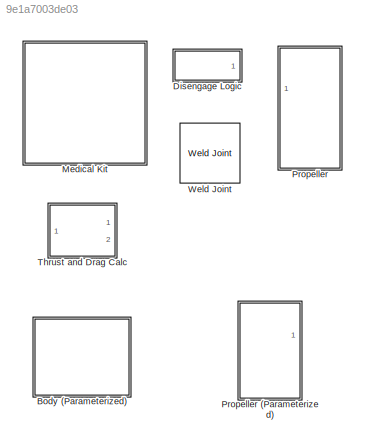
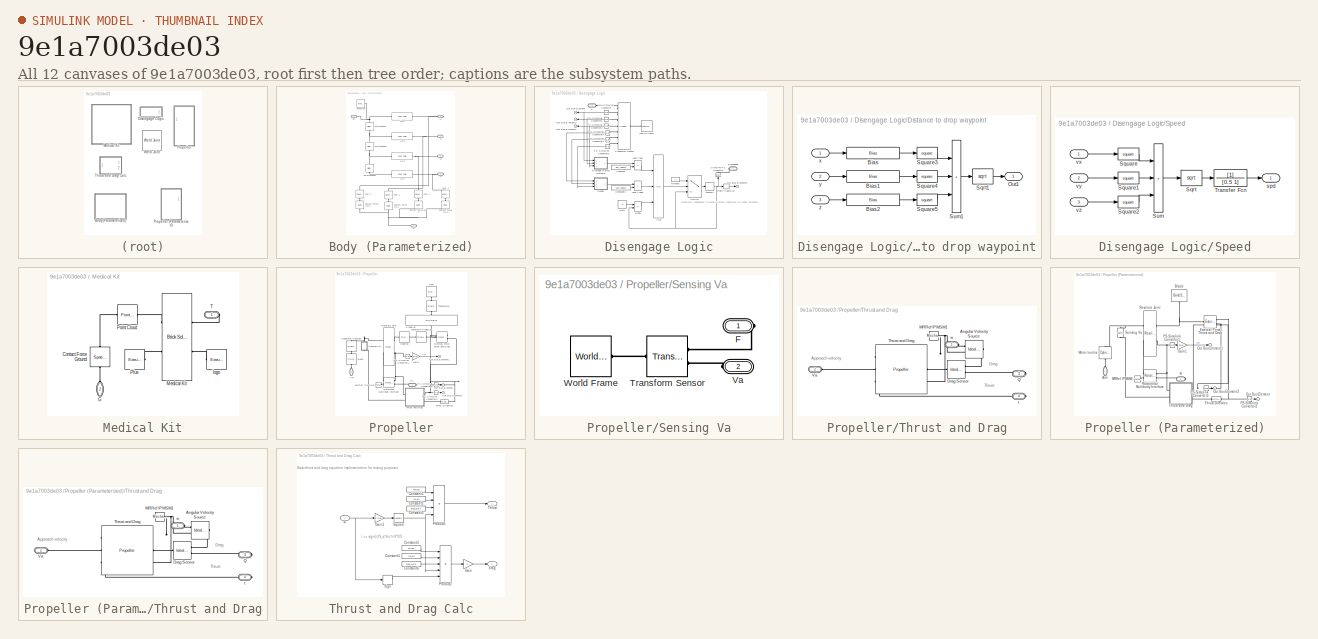
[diagram: thumbnail index - all 12 canvases of the model, root first then tree order]
MODEL slx_9e1a7003de03
KIND library
CONFIG AbsTol = auto
CONFIG EnableMultiTasking = off
CONFIG FixedStep = auto
CONFIG MaxStep = auto
CONFIG MinStep = auto
CONFIG RelTol = 1e-3
CONFIG SampleTimeConstraint = Unconstrained
CONFIG SolverName = VariableStepAuto
CONFIG StartTime = 0.0
CONFIG StopTime = 10.0
BLOCK [SubSystem] Body (Parameterized)
  PortSchema = {"entries":[{"content":{"sides":[{"content":{"connectorIds":["LConn1"]},"type":"ConnectorPlacement.EquallySpacedRectSide","uuid":"71964c0b-701d-403a-93bc-e0b6e5c18655"},{"content":{"connectorIds":["RConn1"],"side":"RIGHT"},"type":"ConnectorPlacement.EquallySpacedRectSide","uuid":"16cc4849-f0dc-4b80-8d16-c0672fc1cf46"},{"content":{"connectorIds":["LConn2"],"side":"TOP"},"type":"ConnectorPlacement.E...<+423ch>
  Ports = [0, 0, 0, 0, 0, 2, 4]
  RequestExecContextInheritance = off
BLOCK [PMIOPort] Body (Parameterized)/A1
  Port = 3
  Side = Right
BLOCK [PMIOPort] Body (Parameterized)/A2
  Port = 2
  Side = Left
BLOCK [PMIOPort] Body (Parameterized)/A3
  Side = Left
BLOCK [PMIOPort] Body (Parameterized)/A4
  Port = 5
  Side = Right
BLOCK [Reference] Body (Parameterized)/Arm1  REF=sm_lib/Body Elements/Brick Solid
  Ports = [0, 0, 0, 0, 0, 1, 1]
  SourceBlock = sm_lib/Body Elements/Brick Solid
  SourceProductBaseCode = MS
  SourceType = Brick Solid
BLOCK [Reference] Body (Parameterized)/Arm2  REF=sm_lib/Body Elements/Brick Solid
  Ports = [0, 0, 0, 0, 0, 1, 1]
  SourceBlock = sm_lib/Body Elements/Brick Solid
  SourceProductBaseCode = MS
  SourceType = Brick Solid
BLOCK [Reference] Body (Parameterized)/Arm3  REF=sm_lib/Body Elements/Brick Solid
  Ports = [0, 0, 0, 0, 0, 1, 1]
  SourceBlock = sm_lib/Body Elements/Brick Solid
  SourceProductBaseCode = MS
  SourceType = Brick Solid
BLOCK [Reference] Body (Parameterized)/Arm4  REF=sm_lib/Body Elements/Brick Solid
  Ports = [0, 0, 0, 0, 0, 1, 1]
  SourceBlock = sm_lib/Body Elements/Brick Solid
  SourceProductBaseCode = MS
  SourceType = Brick Solid
BLOCK [Reference] Body (Parameterized)/Contact Force Arm1  REF=sm_lib/Forces and
Torques/Spatial
Contact Force
  NameLocation = right
  Ports = [0, 0, 0, 0, 0, 1, 1]
  SourceBlock = sm_lib/Forces and\nTorques/Spatial\nContact Force
  SourceProductBaseCode = MS
  SourceType = Spatial\nContact Force
BLOCK [Reference] Body (Parameterized)/Contact Force Arm3  REF=sm_lib/Forces and
Torques/Spatial
Contact Force
  NameLocation = right
  Ports = [0, 0, 0, 0, 0, 1, 1]
  SourceBlock = sm_lib/Forces and\nTorques/Spatial\nContact Force
  SourceProductBaseCode = MS
  SourceType = Spatial\nContact Force
BLOCK [Reference] Body (Parameterized)/Contact Force Arm4  REF=sm_lib/Forces and
Torques/Spatial
Contact Force
  NameLocation = right
  Ports = [0, 0, 0, 0, 0, 1, 1]
  SourceBlock = sm_lib/Forces and\nTorques/Spatial\nContact Force
  SourceProductBaseCode = MS
  SourceType = Spatial\nContact Force
BLOCK [Reference] Body (Parameterized)/Contact Force Foot 2  REF=sm_lib/Forces and
Torques/Spatial
Contact Force
  NameLocation = right
  Ports = [0, 0, 0, 0, 0, 1, 1]
  SourceBlock = sm_lib/Forces and\nTorques/Spatial\nContact Force
  SourceProductBaseCode = MS
  SourceType = Spatial\nContact Force
BLOCK [PMIOPort] Body (Parameterized)/Ctr
  NameLocation = top
  Port = 4
  Side = Right
BLOCK [Reference] Body (Parameterized)/FixedMass  REF=sm_lib/Body Elements/Brick Solid
  Ports = [0, 0, 0, 0, 0, 0, 1]
  SourceBlock = sm_lib/Body Elements/Brick Solid
  SourceProductBaseCode = MS
  SourceType = Brick Solid
BLOCK [Reference] Body (Parameterized)/Foot 1  REF=sm_lib/Body Elements/Spherical Solid
  NameLocation = right
  Ports = [0, 0, 0, 0, 0, 1, 1]
  SourceBlock = sm_lib/Body Elements/Spherical Solid
  SourceProductBaseCode = MS
  SourceType = Spherical Solid
BLOCK [Reference] Body (Parameterized)/Foot 2  REF=sm_lib/Body Elements/Spherical Solid
  NameLocation = right
  Ports = [0, 0, 0, 0, 0, 1, 1]
  SourceBlock = sm_lib/Body Elements/Spherical Solid
  SourceProductBaseCode = MS
  SourceType = Spherical Solid
BLOCK [Reference] Body (Parameterized)/Foot 3  REF=sm_lib/Body Elements/Spherical Solid
  NameLocation = right
  Ports = [0, 0, 0, 0, 0, 1, 1]
  SourceBlock = sm_lib/Body Elements/Spherical Solid
  SourceProductBaseCode = MS
  SourceType = Spherical Solid
BLOCK [Reference] Body (Parameterized)/Foot 4  REF=sm_lib/Body Elements/Spherical Solid
  NameLocation = right
  Ports = [0, 0, 0, 0, 0, 1, 1]
  SourceBlock = sm_lib/Body Elements/Spherical Solid
  SourceProductBaseCode = MS
  SourceType = Spherical Solid
BLOCK [PMIOPort] Body (Parameterized)/G
  Port = 6
  Side = Right
BLOCK [Reference] Body (Parameterized)/Rotate90deg  REF=sm_lib/Frames and
Transforms/Rigid
Transform
  NameLocation = left
  Ports = [0, 0, 0, 0, 0, 1, 1]
  SourceBlock = sm_lib/Frames and\nTransforms/Rigid\nTransform
  SourceProductBaseCode = MS
  SourceType = Rigid\nTransform
BLOCK [Reference] Body (Parameterized)/Rotate90deg1  REF=sm_lib/Frames and
Transforms/Rigid
Transform
  NameLocation = left
  Ports = [0, 0, 0, 0, 0, 1, 1]
  SourceBlock = sm_lib/Frames and\nTransforms/Rigid\nTransform
  SourceProductBaseCode = MS
  SourceType = Rigid\nTransform
BLOCK [Reference] Body (Parameterized)/Rotate90deg2  REF=sm_lib/Frames and
Transforms/Rigid
Transform
  NameLocation = left
  Ports = [0, 0, 0, 0, 0, 1, 1]
  SourceBlock = sm_lib/Frames and\nTransforms/Rigid\nTransform
  SourceProductBaseCode = MS
  SourceType = Rigid\nTransform
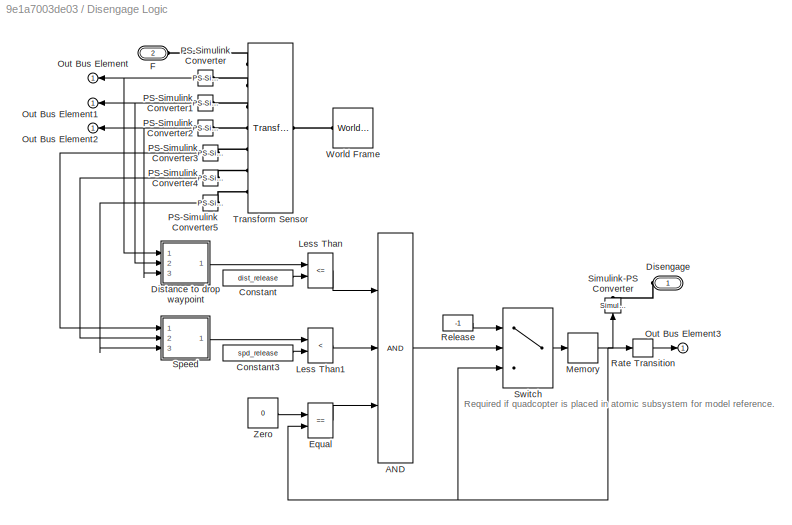
BLOCK [SubSystem] Disengage Logic
  Ports = [0, 1, 0, 0, 0, 2]
  RequestExecContextInheritance = off
BLOCK [Logic] Disengage Logic/AND
  AllPortsSameDT = off
  Inputs = 3
  OutDataTypeStr = boolean
  Ports = [3, 1]
BLOCK [Constant] Disengage Logic/Constant
  Value = dist_release
BLOCK [Constant] Disengage Logic/Constant3
  Value = spd_release
BLOCK [PMIOPort] Disengage Logic/Disengage
  Side = Left
BLOCK [SubSystem] Disengage Logic/Distance to drop waypoint
  Ports = [3, 1]
  RequestExecContextInheritance = off
BLOCK [Bias] Disengage Logic/Distance to drop waypoint/Bias
  Bias = -tgt_pos_x
  SaturateOnIntegerOverflow = off
BLOCK [Bias] Disengage Logic/Distance to drop waypoint/Bias1
  Bias = -tgt_pos_y
  SaturateOnIntegerOverflow = off
BLOCK [Bias] Disengage Logic/Distance to drop waypoint/Bias2
  Bias = -tgt_pos_z
  SaturateOnIntegerOverflow = off
BLOCK [Outport] Disengage Logic/Distance to drop waypoint/Out1
BLOCK [Sqrt] Disengage Logic/Distance to drop waypoint/Sqrt1
BLOCK [Math] Disengage Logic/Distance to drop waypoint/Square3
  Operator = square
  Ports = [1, 1]
BLOCK [Math] Disengage Logic/Distance to drop waypoint/Square4
  Operator = square
  Ports = [1, 1]
BLOCK [Math] Disengage Logic/Distance to drop waypoint/Square5
  Operator = square
  Ports = [1, 1]
BLOCK [Sum] Disengage Logic/Distance to drop waypoint/Sum1
  IconShape = rectangular
  Inputs = +++
  Ports = [3, 1]
BLOCK [Inport] Disengage Logic/Distance to drop waypoint/x
BLOCK [Inport] Disengage Logic/Distance to drop waypoint/y
  Port = 2
BLOCK [Inport] Disengage Logic/Distance to drop waypoint/z
  Port = 3
BLOCK [RelationalOperator] Disengage Logic/Equal
  InputSameDT = off
  Operator = ==
  OutDataTypeStr = boolean
  Ports = [2, 1]
  RndMeth = Simplest
BLOCK [PMIOPort] Disengage Logic/F
  Port = 2
  Side = Left
BLOCK [RelationalOperator] Disengage Logic/Less Than
  InputSameDT = off
  Operator = <=
  OutDataTypeStr = boolean
  Ports = [2, 1]
  RndMeth = Simplest
  ZeroCross = off
BLOCK [RelationalOperator] Disengage Logic/Less Than1
  InputSameDT = off
  Operator = <
  OutDataTypeStr = boolean
  Ports = [2, 1]
  RndMeth = Simplest
  ZeroCross = off
BLOCK [Memory] Disengage Logic/Memory
BLOCK [Outport] Disengage Logic/Out Bus Element
BLOCK [Outport] Disengage Logic/Out Bus Element1
BLOCK [Outport] Disengage Logic/Out Bus Element2
BLOCK [Outport] Disengage Logic/Out Bus Element3
BLOCK [Reference] Disengage Logic/PS-Simulink Converter  REF=nesl_utility/PS-Simulink
Converter
  Ports = [0, 1, 0, 0, 0, 1]
  SourceBlock = nesl_utility/PS-Simulink\nConverter
  SourceProductBaseCode = PW,SS
  SourceType = PS-Simulink\nConverter
BLOCK [Reference] Disengage Logic/PS-Simulink Converter1  REF=nesl_utility/PS-Simulink
Converter
  Ports = [0, 1, 0, 0, 0, 1]
  SourceBlock = nesl_utility/PS-Simulink\nConverter
  SourceProductBaseCode = PW,SS
  SourceType = PS-Simulink\nConverter
BLOCK [Reference] Disengage Logic/PS-Simulink Converter2  REF=nesl_utility/PS-Simulink
Converter
  Ports = [0, 1, 0, 0, 0, 1]
  SourceBlock = nesl_utility/PS-Simulink\nConverter
  SourceProductBaseCode = PW,SS
  SourceType = PS-Simulink\nConverter
BLOCK [Reference] Disengage Logic/PS-Simulink Converter3  REF=nesl_utility/PS-Simulink
Converter
  Ports = [0, 1, 0, 0, 0, 1]
  SourceBlock = nesl_utility/PS-Simulink\nConverter
  SourceProductBaseCode = PW,SS
  SourceType = PS-Simulink\nConverter
BLOCK [Reference] Disengage Logic/PS-Simulink Converter4  REF=nesl_utility/PS-Simulink
Converter
  Ports = [0, 1, 0, 0, 0, 1]
  SourceBlock = nesl_utility/PS-Simulink\nConverter
  SourceProductBaseCode = PW,SS
  SourceType = PS-Simulink\nConverter
BLOCK [Reference] Disengage Logic/PS-Simulink Converter5  REF=nesl_utility/PS-Simulink
Converter
  Ports = [0, 1, 0, 0, 0, 1]
  SourceBlock = nesl_utility/PS-Simulink\nConverter
  SourceProductBaseCode = PW,SS
  SourceType = PS-Simulink\nConverter
BLOCK [RateTransition] Disengage Logic/Rate Transition
BLOCK [Constant] Disengage Logic/Release
  NameLocation = top
  OutDataTypeStr = Inherit: Inherit via back propagation
  Value = -1
BLOCK [Reference] Disengage Logic/Simulink-PS Converter  REF=nesl_utility/Simulink-PS
Converter
  NameLocation = right
  Ports = [1, 0, 0, 0, 0, 0, 1]
  SourceBlock = nesl_utility/Simulink-PS\nConverter
  SourceProductBaseCode = PW,SS
  SourceType = Simulink-PS\nConverter
BLOCK [SubSystem] Disengage Logic/Speed
  Ports = [3, 1]
  RequestExecContextInheritance = off
BLOCK [Sqrt] Disengage Logic/Speed/Sqrt
BLOCK [Math] Disengage Logic/Speed/Square
  Operator = square
  Ports = [1, 1]
BLOCK [Math] Disengage Logic/Speed/Square1
  Operator = square
  Ports = [1, 1]
BLOCK [Math] Disengage Logic/Speed/Square2
  Operator = square
  Ports = [1, 1]
BLOCK [Sum] Disengage Logic/Speed/Sum
  IconShape = rectangular
  Inputs = +++
  Ports = [3, 1]
BLOCK [TransferFcn] Disengage Logic/Speed/Transfer Fcn
  Denominator = [0.5 1]
BLOCK [Outport] Disengage Logic/Speed/spd
BLOCK [Inport] Disengage Logic/Speed/vx
BLOCK [Inport] Disengage Logic/Speed/vy
  Port = 2
BLOCK [Inport] Disengage Logic/Speed/vz
  Port = 3
BLOCK [Switch] Disengage Logic/Switch
  Criteria = u2 > Threshold
  InputSameDT = off
  SaturateOnIntegerOverflow = off
BLOCK [Reference] Disengage Logic/Transform Sensor  REF=sm_lib/Frames and
Transforms/Transform
Sensor
  Ports = [0, 0, 0, 0, 0, 1, 7]
  SourceBlock = sm_lib/Frames and\nTransforms/Transform\nSensor
  SourceProductBaseCode = MS
  SourceType = Transform\nSensor
BLOCK [Reference] Disengage Logic/World Frame  REF=sm_lib/Frames and
Transforms/World Frame
  Ports = [0, 0, 0, 0, 0, 0, 1]
  SourceBlock = sm_lib/Frames and\nTransforms/World Frame
  SourceProductBaseCode = MS
  SourceType = World Frame
BLOCK [Constant] Disengage Logic/Zero
  OutDataTypeStr = Inherit: Inherit via back propagation
  Value = 0
BLOCK [SubSystem] Medical Kit
  Ports = [0, 0, 0, 0, 0, 1, 1]
  RequestExecContextInheritance = off
BLOCK [Reference] Medical Kit/Contact Force Ground  REF=sm_lib/Forces and
Torques/Spatial
Contact Force
  NameLocation = left
  Ports = [0, 0, 0, 0, 0, 1, 1]
  SourceBlock = sm_lib/Forces and\nTorques/Spatial\nContact Force
  SourceProductBaseCode = MS
  SourceType = Spatial\nContact Force
BLOCK [PMIOPort] Medical Kit/G
  NameLocation = left
  Port = 2
  Side = Left
BLOCK [Reference] Medical Kit/Medical Kit  REF=sm_lib/Body Elements/Brick Solid
  Ports = [0, 0, 0, 0, 0, 2, 2]
  SourceBlock = sm_lib/Body Elements/Brick Solid
  SourceProductBaseCode = MS
  SourceType = Brick Solid
BLOCK [Reference] Medical Kit/Plus  REF=sm_lib/Body Elements/Extruded Solid
  Ports = [0, 0, 0, 0, 0, 0, 1]
  SourceBlock = sm_lib/Body Elements/Extruded Solid
  SourceProductBaseCode = MS
  SourceType = Extruded Solid
BLOCK [Reference] Medical Kit/Point Cloud  REF=sm_lib/Curves and Surfaces/Point Cloud
  Ports = [0, 0, 0, 0, 0, 1, 1]
  SourceBlock = sm_lib/Curves and Surfaces/Point Cloud
  SourceProductBaseCode = MS
  SourceType = Point Cloud
BLOCK [PMIOPort] Medical Kit/T
  Side = Right
BLOCK [Reference] Medical Kit/logo  REF=sm_lib/Body Elements/Extruded Solid
  Ports = [0, 0, 0, 0, 0, 0, 1]
  SourceBlock = sm_lib/Body Elements/Extruded Solid
  SourceProductBaseCode = MS
  SourceType = Extruded Solid
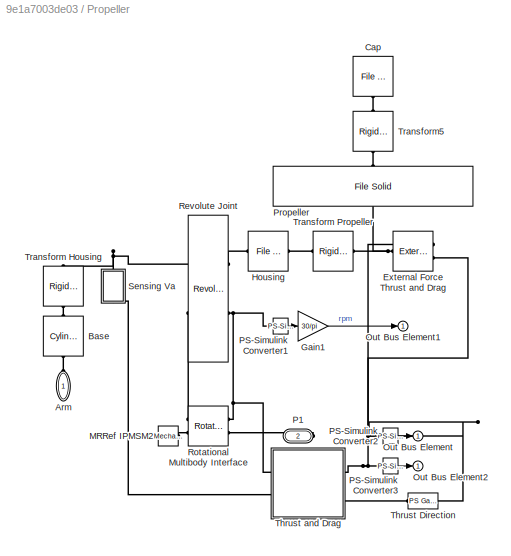
BLOCK [SubSystem] Propeller
  Ports = [0, 1, 0, 0, 0, 1, 1]
  RequestExecContextInheritance = off
BLOCK [SubSystem] Propeller (Parameterized)
  PortSchema = {"entries":[{"content":{"sides":[{"content":{"connectorIds":["LConn1"]},"type":"ConnectorPlacement.EquallySpacedRectSide","uuid":"bda53b0d-2d0a-42d0-8427-0e839c72d07d"},{"content":{"connectorIds":["RConn1","Out1"],"side":"RIGHT"},"type":"ConnectorPlacement.EquallySpacedRectSide","uuid":"59875194-16de-42fe-ad5a-9de406b1fa58"},{"content":{"connectorIds":[],"side":"TOP"},"type":"ConnectorPlacement.Eq...<+252ch>
  Ports = [0, 1, 0, 0, 0, 1, 1]
  RequestExecContextInheritance = off
BLOCK [PMIOPort] Propeller (Parameterized)/Arm
  NameLocation = left
  Side = Left
BLOCK [Reference] Propeller (Parameterized)/Blade  REF=sm_lib/Body Elements/Brick Solid
  NameLocation = left
  Ports = [0, 0, 0, 0, 0, 0, 1]
  SourceBlock = sm_lib/Body Elements/Brick Solid
  SourceProductBaseCode = MS
  SourceType = Brick Solid
BLOCK [Reference] Propeller (Parameterized)/External Force Thrust and Drag  REF=sm_lib/Forces and
Torques/External Force
and Torque
  Ports = [0, 0, 0, 0, 0, 2, 1]
  SourceBlock = sm_lib/Forces and\nTorques/External Force\nand Torque
  SourceProductBaseCode = MS
  SourceType = External Force\nand Torque
BLOCK [Gain] Propeller (Parameterized)/Gain1
  Gain = 30/pi
BLOCK [Reference] Propeller (Parameterized)/MRRef IPMSM2  REF=fl_lib/Mechanical/Rotational Elements/Mechanical
Rotational Reference
  Ports = [0, 0, 0, 0, 0, 1]
  SourceBlock = fl_lib/Mechanical/Rotational Elements/Mechanical\nRotational Reference
  SourceProductBaseCode = SS
  SourceType = Mechanical\nRotational Reference
BLOCK [Reference] Propeller (Parameterized)/Motor Inertia  REF=sm_lib/Body Elements/Cylindrical Solid
  NameLocation = left
  Ports = [0, 0, 0, 0, 0, 1, 1]
  SourceBlock = sm_lib/Body Elements/Cylindrical Solid
  SourceProductBaseCode = MS
  SourceType = Cylindrical Solid
BLOCK [Outport] Propeller (Parameterized)/Out Bus Element
BLOCK [Outport] Propeller (Parameterized)/Out Bus Element1
BLOCK [Outport] Propeller (Parameterized)/Out Bus Element2
BLOCK [Reference] Propeller (Parameterized)/PS-Simulink Converter1  REF=nesl_utility/PS-Simulink
Converter
  Ports = [0, 1, 0, 0, 0, 1]
  SourceBlock = nesl_utility/PS-Simulink\nConverter
  SourceProductBaseCode = PW,SS
  SourceType = PS-Simulink\nConverter
BLOCK [Reference] Propeller (Parameterized)/PS-Simulink Converter2  REF=nesl_utility/PS-Simulink
Converter
  Ports = [0, 1, 0, 0, 0, 1]
  SourceBlock = nesl_utility/PS-Simulink\nConverter
  SourceProductBaseCode = PW,SS
  SourceType = PS-Simulink\nConverter
BLOCK [Reference] Propeller (Parameterized)/PS-Simulink Converter3  REF=nesl_utility/PS-Simulink
Converter
  Ports = [0, 1, 0, 0, 0, 1]
  SourceBlock = nesl_utility/PS-Simulink\nConverter
  SourceProductBaseCode = PW,SS
  SourceType = PS-Simulink\nConverter
BLOCK [PMIOPort] Propeller (Parameterized)/R
  NameLocation = top
  Port = 2
  Side = Right
BLOCK [Reference] Propeller (Parameterized)/Revolute Joint  REF=sm_lib/Joints/Revolute Joint
  Ports = [0, 0, 0, 0, 0, 2, 2]
  SourceBlock = sm_lib/Joints/Revolute Joint
  SourceProductBaseCode = MS
  SourceType = Revolute Joint
BLOCK [Reference] Propeller (Parameterized)/Rotational Multibody Interface  REF=fl_lib/Mechanical/Multibody Interfaces/Rotational Multibody
Interface
  Ports = [0, 0, 0, 0, 0, 2, 2]
  SourceBlock = fl_lib/Mechanical/Multibody Interfaces/Rotational Multibody\nInterface
  SourceProductBaseCode = SS
  SourceType = Rotational Multibody\nInterface
BLOCK [Reference] Propeller (Parameterized)/Sensing Va  REF=$bdroot/Propeller/Sensing
Va
  NameLocation = right
  Ports = [0, 0, 0, 0, 0, 1, 1]
  SourceBlock = $bdroot/Propeller/Sensing\nVa
  SourceType = SubSystem
BLOCK [Reference] Propeller (Parameterized)/Thrust Direction  REF=fl_lib/Physical Signals/Functions/PS Gain
  Ports = [0, 0, 0, 0, 0, 1, 1]
  SourceBlock = fl_lib/Physical Signals/Functions/PS Gain
  SourceProductBaseCode = SS
  SourceType = PS Gain
BLOCK [SubSystem] Propeller (Parameterized)/Thrust and Drag
  Ports = [0, 0, 0, 0, 0, 2, 2]
  RequestExecContextInheritance = off
BLOCK [Reference] Propeller (Parameterized)/Thrust and Drag/Angular Velocity Source  REF=fl_lib/Mechanical/Mechanical Sources/Ideal Angular
Velocity Source
  NameLocation = top
  Ports = [0, 0, 0, 0, 0, 1, 2]
  SourceBlock = fl_lib/Mechanical/Mechanical Sources/Ideal Angular\nVelocity Source
  SourceProductBaseCode = SS
  SourceType = Ideal Angular\nVelocity Source
BLOCK [Reference] Propeller (Parameterized)/Thrust and Drag/Drag Sensor  REF=fl_lib/Mechanical/Mechanical Sensors/Ideal Torque Sensor
  Ports = [0, 0, 0, 0, 0, 1, 2]
  SourceBlock = fl_lib/Mechanical/Mechanical Sensors/Ideal Torque Sensor
  SourceProductBaseCode = SS
  SourceType = Ideal Torque Sensor
BLOCK [Reference] Propeller (Parameterized)/Thrust and Drag/MRRef IPMSM1  REF=fl_lib/Mechanical/Rotational Elements/Mechanical
Rotational Reference
  Ports = [0, 0, 0, 0, 0, 1]
  SourceBlock = fl_lib/Mechanical/Rotational Elements/Mechanical\nRotational Reference
  SourceProductBaseCode = SS
  SourceType = Mechanical\nRotational Reference
BLOCK [PMIOPort] Propeller (Parameterized)/Thrust and Drag/Q
  Port = 3
  Side = Right
BLOCK [Reference] Propeller (Parameterized)/Thrust and Drag/Thrust and Drag  REF=sdl_lib/Engines & Motors/Propeller
  Ports = [0, 0, 0, 0, 0, 3, 1]
  SourceBlock = sdl_lib/Engines & Motors/Propeller
  SourceProductBaseCode = LD
  SourceType = Propeller
BLOCK [PMIOPort] Propeller (Parameterized)/Thrust and Drag/Va
  Port = 2
  Side = Left
BLOCK [PMIOPort] Propeller (Parameterized)/Thrust and Drag/t
  Port = 4
  Side = Right
BLOCK [PMIOPort] Propeller (Parameterized)/Thrust and Drag/w
  NameLocation = top
  Side = Left
BLOCK [PMIOPort] Propeller/Arm
  NameLocation = left
  Side = Left
BLOCK [Reference] Propeller/Base  REF=sm_lib/Body Elements/Cylindrical Solid
  NameLocation = left
  Ports = [0, 0, 0, 0, 0, 1, 1]
  SourceBlock = sm_lib/Body Elements/Cylindrical Solid
  SourceProductBaseCode = MS
  SourceType = Cylindrical Solid
BLOCK [Reference] Propeller/Cap  REF=sm_lib/Body Elements/File Solid
  NameLocation = right
  Ports = [0, 0, 0, 0, 0, 0, 1]
  SourceBlock = sm_lib/Body Elements/File Solid
  SourceProductBaseCode = MS
  SourceType = File Solid
BLOCK [Reference] Propeller/External Force Thrust and Drag  REF=sm_lib/Forces and
Torques/External Force
and Torque
  Ports = [0, 0, 0, 0, 0, 2, 1]
  SourceBlock = sm_lib/Forces and\nTorques/External Force\nand Torque
  SourceProductBaseCode = MS
  SourceType = External Force\nand Torque
BLOCK [Gain] Propeller/Gain1
  Gain = 30/pi
BLOCK [Reference] Propeller/Housing  REF=sm_lib/Body Elements/File Solid
  Ports = [0, 0, 0, 0, 0, 1, 1]
  SourceBlock = sm_lib/Body Elements/File Solid
  SourceProductBaseCode = MS
  SourceType = File Solid
BLOCK [Reference] Propeller/MRRef IPMSM2  REF=fl_lib/Mechanical/Rotational Elements/Mechanical
Rotational Reference
  Ports = [0, 0, 0, 0, 0, 1]
  SourceBlock = fl_lib/Mechanical/Rotational Elements/Mechanical\nRotational Reference
  SourceProductBaseCode = SS
  SourceType = Mechanical\nRotational Reference
BLOCK [Outport] Propeller/Out Bus Element
BLOCK [Outport] Propeller/Out Bus Element1
BLOCK [Outport] Propeller/Out Bus Element2
BLOCK [PMIOPort] Propeller/P1
  NameLocation = top
  Port = 2
  Side = Right
BLOCK [Reference] Propeller/PS-Simulink Converter1  REF=nesl_utility/PS-Simulink
Converter
  Ports = [0, 1, 0, 0, 0, 1]
  SourceBlock = nesl_utility/PS-Simulink\nConverter
  SourceProductBaseCode = PW,SS
  SourceType = PS-Simulink\nConverter
BLOCK [Reference] Propeller/PS-Simulink Converter2  REF=nesl_utility/PS-Simulink
Converter
  Ports = [0, 1, 0, 0, 0, 1]
  SourceBlock = nesl_utility/PS-Simulink\nConverter
  SourceProductBaseCode = PW,SS
  SourceType = PS-Simulink\nConverter
BLOCK [Reference] Propeller/PS-Simulink Converter3  REF=nesl_utility/PS-Simulink
Converter
  Ports = [0, 1, 0, 0, 0, 1]
  SourceBlock = nesl_utility/PS-Simulink\nConverter
  SourceProductBaseCode = PW,SS
  SourceType = PS-Simulink\nConverter
BLOCK [Reference] Propeller/Propeller  REF=sm_lib/Body Elements/File Solid
  NameLocation = left
  Ports = [0, 0, 0, 0, 0, 1, 1]
  SourceBlock = sm_lib/Body Elements/File Solid
  SourceProductBaseCode = MS
  SourceType = File Solid
BLOCK [Reference] Propeller/Revolute Joint  REF=sm_lib/Joints/Revolute Joint
  Ports = [0, 0, 0, 0, 0, 2, 2]
  SourceBlock = sm_lib/Joints/Revolute Joint
  SourceProductBaseCode = MS
  SourceType = Revolute Joint
BLOCK [Reference] Propeller/Rotational Multibody Interface  REF=fl_lib/Mechanical/Multibody Interfaces/Rotational Multibody
Interface
  Ports = [0, 0, 0, 0, 0, 2, 2]
  SourceBlock = fl_lib/Mechanical/Multibody Interfaces/Rotational Multibody\nInterface
  SourceProductBaseCode = SS
  SourceType = Rotational Multibody\nInterface
BLOCK [SubSystem] Propeller/Sensing Va
  NameLocation = right
  Ports = [0, 0, 0, 0, 0, 1, 1]
  RequestExecContextInheritance = off
BLOCK [PMIOPort] Propeller/Sensing Va/F
  Side = Right
BLOCK [Reference] Propeller/Sensing Va/Transform Sensor  REF=sm_lib/Frames and
Transforms/Transform
Sensor
  Ports = [0, 0, 0, 0, 0, 1, 2]
  SourceBlock = sm_lib/Frames and\nTransforms/Transform\nSensor
  SourceProductBaseCode = MS
  SourceType = Transform\nSensor
BLOCK [PMIOPort] Propeller/Sensing Va/Va
  Port = 2
  Side = Left
BLOCK [Reference] Propeller/Sensing Va/World Frame  REF=sm_lib/Frames and
Transforms/World Frame
  Ports = [0, 0, 0, 0, 0, 0, 1]
  SourceBlock = sm_lib/Frames and\nTransforms/World Frame
  SourceProductBaseCode = MS
  SourceType = World Frame
BLOCK [Reference] Propeller/Thrust Direction  REF=fl_lib/Physical Signals/Functions/PS Gain
  Ports = [0, 0, 0, 0, 0, 1, 1]
  SourceBlock = fl_lib/Physical Signals/Functions/PS Gain
  SourceProductBaseCode = SS
  SourceType = PS Gain
BLOCK [SubSystem] Propeller/Thrust and Drag
  Ports = [0, 0, 0, 0, 0, 2, 2]
  RequestExecContextInheritance = off
BLOCK [Reference] Propeller/Thrust and Drag/Angular Velocity Source  REF=fl_lib/Mechanical/Mechanical Sources/Ideal Angular
Velocity Source
  NameLocation = top
  Ports = [0, 0, 0, 0, 0, 1, 2]
  SourceBlock = fl_lib/Mechanical/Mechanical Sources/Ideal Angular\nVelocity Source
  SourceProductBaseCode = SS
  SourceType = Ideal Angular\nVelocity Source
BLOCK [Reference] Propeller/Thrust and Drag/Drag Sensor  REF=fl_lib/Mechanical/Mechanical Sensors/Ideal Torque Sensor
  Ports = [0, 0, 0, 0, 0, 1, 2]
  SourceBlock = fl_lib/Mechanical/Mechanical Sensors/Ideal Torque Sensor
  SourceProductBaseCode = SS
  SourceType = Ideal Torque Sensor
BLOCK [Reference] Propeller/Thrust and Drag/MRRef IPMSM1  REF=fl_lib/Mechanical/Rotational Elements/Mechanical
Rotational Reference
  Ports = [0, 0, 0, 0, 0, 1]
  SourceBlock = fl_lib/Mechanical/Rotational Elements/Mechanical\nRotational Reference
  SourceProductBaseCode = SS
  SourceType = Mechanical\nRotational Reference
BLOCK [PMIOPort] Propeller/Thrust and Drag/Q
  Port = 3
  Side = Right
BLOCK [Reference] Propeller/Thrust and Drag/Thrust and Drag  REF=sdl_lib/Engines & Motors/Propeller
  Ports = [0, 0, 0, 0, 0, 3, 1]
  SourceBlock = sdl_lib/Engines & Motors/Propeller
  SourceProductBaseCode = LD
  SourceType = Propeller
BLOCK [PMIOPort] Propeller/Thrust and Drag/Va
  Port = 2
  Side = Left
BLOCK [PMIOPort] Propeller/Thrust and Drag/t
  Port = 4
  Side = Right
BLOCK [PMIOPort] Propeller/Thrust and Drag/w
  NameLocation = top
  Side = Left
BLOCK [Reference] Propeller/Transform Housing  REF=sm_lib/Frames and
Transforms/Rigid
Transform
  NameLocation = left
  Ports = [0, 0, 0, 0, 0, 1, 1]
  SourceBlock = sm_lib/Frames and\nTransforms/Rigid\nTransform
  SourceProductBaseCode = MS
  SourceType = Rigid\nTransform
BLOCK [Reference] Propeller/Transform Propeller  REF=sm_lib/Frames and
Transforms/Rigid
Transform
  Ports = [0, 0, 0, 0, 0, 1, 1]
  SourceBlock = sm_lib/Frames and\nTransforms/Rigid\nTransform
  SourceProductBaseCode = MS
  SourceType = Rigid\nTransform
BLOCK [Reference] Propeller/Transform5  REF=sm_lib/Frames and
Transforms/Rigid
Transform
  NameLocation = right
  Ports = [0, 0, 0, 0, 0, 1, 1]
  SourceBlock = sm_lib/Frames and\nTransforms/Rigid\nTransform
  SourceProductBaseCode = MS
  SourceType = Rigid\nTransform
BLOCK [SubSystem] Thrust and Drag Calc
  Ports = [1, 2]
  RequestExecContextInheritance = off
BLOCK [Constant] Thrust and Drag Calc/Constant1
  Value = kThrust
BLOCK [Constant] Thrust and Drag Calc/Constant2
  Value = rho_air
BLOCK [Constant] Thrust and Drag Calc/Constant3
  Value = prop_dia^4
BLOCK [Constant] Thrust and Drag Calc/Constant4
  Value = kDrag
BLOCK [Constant] Thrust and Drag Calc/Constant5
  Value = rho_air
BLOCK [Constant] Thrust and Drag Calc/Constant6
  Value = prop_dia^5
BLOCK [Gain] Thrust and Drag Calc/Gain
  Gain = -1
BLOCK [Gain] Thrust and Drag Calc/Gain3
  Gain = 1/(2*pi)
BLOCK [Product] Thrust and Drag Calc/Product1
  Inputs = 4
  Ports = [4, 1]
BLOCK [Product] Thrust and Drag Calc/Product2
  Inputs = 5
  Ports = [5, 1]
BLOCK [Signum] Thrust and Drag Calc/Sign
  ZeroCross = off
BLOCK [Math] Thrust and Drag Calc/Square
  Operator = square
  Ports = [1, 1]
BLOCK [Outport] Thrust and Drag Calc/Thrust
BLOCK [Outport] Thrust and Drag Calc/drag
  Port = 2
BLOCK [Inport] Thrust and Drag Calc/w
BLOCK [Reference] Weld Joint  REF=sm_lib/Joints/Weld Joint
  Ports = [0, 0, 0, 0, 0, 2, 1]
  SourceBlock = sm_lib/Joints/Weld Joint
  SourceProductBaseCode = MS
  SourceType = Weld Joint
ANNOTATION Disengage Logic: Required if quadcopter is placed in atomic subsystem for model reference.
ANNOTATION Propeller (Parameterized)/Thrust and Drag: Approach velocity
ANNOTATION Propeller (Parameterized)/Thrust and Drag: Drag
ANNOTATION Propeller (Parameterized)/Thrust and Drag: Thrust
ANNOTATION Propeller/Thrust and Drag: Approach velocity
ANNOTATION Propeller/Thrust and Drag: Drag
ANNOTATION Propeller/Thrust and Drag: Thrust
ANNOTATION Thrust and Drag Calc: Basic thrust and drag equation implementation for testing purposes.
ANNOTATION Thrust and Drag Calc: t == sign(n)*k_q*rho*n^2*D^5
LINE Disengage Logic/AND:1 -> Disengage Logic/Switch:2
LINE Disengage Logic/Constant3:1 -> Disengage Logic/Less Than1:2
LINE Disengage Logic/Constant:1 -> Disengage Logic/Less Than:2
LINE Disengage Logic/Distance to drop waypoint/Bias1:1 -> Disengage Logic/Distance to drop waypoint/Square4:1
LINE Disengage Logic/Distance to drop waypoint/Bias2:1 -> Disengage Logic/Distance to drop waypoint/Square5:1
LINE Disengage Logic/Distance to drop waypoint/Bias:1 -> Disengage Logic/Distance to drop waypoint/Square3:1
LINE Disengage Logic/Distance to drop waypoint/Sqrt1:1 -> Disengage Logic/Distance to drop waypoint/Out1:1
LINE Disengage Logic/Distance to drop waypoint/Square3:1 -> Disengage Logic/Distance to drop waypoint/Sum1:1
LINE Disengage Logic/Distance to drop waypoint/Square4:1 -> Disengage Logic/Distance to drop waypoint/Sum1:2
LINE Disengage Logic/Distance to drop waypoint/Square5:1 -> Disengage Logic/Distance to drop waypoint/Sum1:3
LINE Disengage Logic/Distance to drop waypoint/Sum1:1 -> Disengage Logic/Distance to drop waypoint/Sqrt1:1
LINE Disengage Logic/Distance to drop waypoint/x:1 -> Disengage Logic/Distance to drop waypoint/Bias:1
LINE Disengage Logic/Distance to drop waypoint/y:1 -> Disengage Logic/Distance to drop waypoint/Bias1:1
LINE Disengage Logic/Distance to drop waypoint/z:1 -> Disengage Logic/Distance to drop waypoint/Bias2:1
LINE Disengage Logic/Distance to drop waypoint:1 -> Disengage Logic/Less Than:1
LINE Disengage Logic/Equal:1 -> Disengage Logic/AND:3
LINE Disengage Logic/Less Than1:1 -> Disengage Logic/AND:2
LINE Disengage Logic/Less Than:1 -> Disengage Logic/AND:1
NET Disengage Logic/Memory:1 -> Disengage Logic/Equal:2, Disengage Logic/Rate Transition:1, Disengage Logic/Simulink-PS Converter:1, Disengage Logic/Switch:3
NET Disengage Logic/PS-Simulink Converter1:1 -> Disengage Logic/Distance to drop waypoint:2, Disengage Logic/Out Bus Element1:1
NET Disengage Logic/PS-Simulink Converter2:1 -> Disengage Logic/Distance to drop waypoint:3, Disengage Logic/Out Bus Element2:1
LINE Disengage Logic/PS-Simulink Converter3:1 -> Disengage Logic/Speed:1
LINE Disengage Logic/PS-Simulink Converter4:1 -> Disengage Logic/Speed:2
LINE Disengage Logic/PS-Simulink Converter5:1 -> Disengage Logic/Speed:3
NET Disengage Logic/PS-Simulink Converter:1 -> Disengage Logic/Distance to drop waypoint:1, Disengage Logic/Out Bus Element:1
LINE Disengage Logic/Rate Transition:1 -> Disengage Logic/Out Bus Element3:1
LINE Disengage Logic/Release:1 -> Disengage Logic/Switch:1
LINE Disengage Logic/Speed/Sqrt:1 -> Disengage Logic/Speed/Transfer Fcn:1
LINE Disengage Logic/Speed/Square1:1 -> Disengage Logic/Speed/Sum:2
LINE Disengage Logic/Speed/Square2:1 -> Disengage Logic/Speed/Sum:3
LINE Disengage Logic/Speed/Square:1 -> Disengage Logic/Speed/Sum:1
LINE Disengage Logic/Speed/Sum:1 -> Disengage Logic/Speed/Sqrt:1
LINE Disengage Logic/Speed/Transfer Fcn:1 -> Disengage Logic/Speed/spd:1
LINE Disengage Logic/Speed/vx:1 -> Disengage Logic/Speed/Square:1
LINE Disengage Logic/Speed/vy:1 -> Disengage Logic/Speed/Square1:1
LINE Disengage Logic/Speed/vz:1 -> Disengage Logic/Speed/Square2:1
LINE Disengage Logic/Speed:1 -> Disengage Logic/Less Than1:1
LINE Disengage Logic/Switch:1 -> Disengage Logic/Memory:1
LINE Disengage Logic/Zero:1 -> Disengage Logic/Equal:1
LINE Propeller (Parameterized)/Gain1:1 -> Propeller (Parameterized)/Out Bus Element1:1
LINE Propeller (Parameterized)/PS-Simulink Converter1:1 -> Propeller (Parameterized)/Gain1:1
LINE Propeller (Parameterized)/PS-Simulink Converter2:1 -> Propeller (Parameterized)/Out Bus Element:1
LINE Propeller (Parameterized)/PS-Simulink Converter3:1 -> Propeller (Parameterized)/Out Bus Element2:1
LINE Thrust and Drag Calc/Constant1:1 -> Thrust and Drag Calc/Product1:1
LINE Thrust and Drag Calc/Constant2:1 -> Thrust and Drag Calc/Product1:2
LINE Thrust and Drag Calc/Constant3:1 -> Thrust and Drag Calc/Product1:3
LINE Thrust and Drag Calc/Constant4:1 -> Thrust and Drag Calc/Product2:1
LINE Thrust and Drag Calc/Constant5:1 -> Thrust and Drag Calc/Product2:2
LINE Thrust and Drag Calc/Constant6:1 -> Thrust and Drag Calc/Product2:3
LINE Thrust and Drag Calc/Gain3:1 -> Thrust and Drag Calc/Square:1
LINE Thrust and Drag Calc/Gain:1 -> Thrust and Drag Calc/drag:1
LINE Thrust and Drag Calc/Product1:1 -> Thrust and Drag Calc/Thrust:1
LINE Thrust and Drag Calc/Product2:1 -> Thrust and Drag Calc/Gain:1
LINE Thrust and Drag Calc/Sign:1 -> Thrust and Drag Calc/Product2:5
NET Thrust and Drag Calc/Square:1 -> Thrust and Drag Calc/Product1:4, Thrust and Drag Calc/Product2:4
NET Thrust and Drag Calc/w:1 -> Thrust and Drag Calc/Gain3:1, Thrust and Drag Calc/Sign:1
PNET net1: Body (Parameterized)/A1:RConn1 -- Body (Parameterized)/Arm1:LConn1 -- Body (Parameterized)/Foot 3:RConn1
PNET net2: Body (Parameterized)/A2:RConn1 -- Body (Parameterized)/Arm2:LConn1 -- Body (Parameterized)/Foot 1:RConn1
PNET net3: Body (Parameterized)/A3:RConn1 -- Body (Parameterized)/Arm3:LConn1 -- Body (Parameterized)/Foot 2:RConn1
PNET net4: Body (Parameterized)/A4:RConn1 -- Body (Parameterized)/Arm4:LConn1 -- Body (Parameterized)/Foot 4:RConn1
PNET net5: Body (Parameterized)/Arm1:RConn1 -- Body (Parameterized)/Ctr:RConn1 -- Body (Parameterized)/FixedMass:RConn1 -- Body (Parameterized)/Rotate90deg:LConn1
PNET net6: Body (Parameterized)/Arm2:RConn1 -- Body (Parameterized)/Rotate90deg1:LConn1 -- Body (Parameterized)/Rotate90deg:RConn1
PNET net7: Body (Parameterized)/Arm3:RConn1 -- Body (Parameterized)/Rotate90deg1:RConn1 -- Body (Parameterized)/Rotate90deg2:LConn1
PLINE Body (Parameterized)/Arm4:RConn1 -- Body (Parameterized)/Rotate90deg2:RConn1
PLINE Body (Parameterized)/Contact Force Arm1:LConn1 -- Body (Parameterized)/Foot 1:LConn1
PNET net8: Body (Parameterized)/Contact Force Arm1:RConn1 -- Body (Parameterized)/Contact Force Arm3:RConn1 -- Body (Parameterized)/Contact Force Arm4:RConn1 -- Body (Parameterized)/Contact Force Foot 2:RConn1 -- Body (Parameterized)/G:RConn1
PLINE Body (Parameterized)/Contact Force Arm3:LConn1 -- Body (Parameterized)/Foot 3:LConn1
PLINE Body (Parameterized)/Contact Force Arm4:LConn1 -- Body (Parameterized)/Foot 4:LConn1
PLINE Body (Parameterized)/Contact Force Foot 2:LConn1 -- Body (Parameterized)/Foot 2:LConn1
PLINE Disengage Logic/Disengage:RConn1 -- Disengage Logic/Simulink-PS Converter:RConn1
PLINE Disengage Logic/F:RConn1 -- Disengage Logic/Transform Sensor:RConn1
PLINE Disengage Logic/PS-Simulink Converter1:LConn1 -- Disengage Logic/Transform Sensor:RConn3
PLINE Disengage Logic/PS-Simulink Converter2:LConn1 -- Disengage Logic/Transform Sensor:RConn4
PLINE Disengage Logic/PS-Simulink Converter3:LConn1 -- Disengage Logic/Transform Sensor:RConn5
PLINE Disengage Logic/PS-Simulink Converter4:LConn1 -- Disengage Logic/Transform Sensor:RConn6
PLINE Disengage Logic/PS-Simulink Converter5:LConn1 -- Disengage Logic/Transform Sensor:RConn7
PLINE Disengage Logic/PS-Simulink Converter:LConn1 -- Disengage Logic/Transform Sensor:RConn2
PLINE Disengage Logic/Transform Sensor:LConn1 -- Disengage Logic/World Frame:RConn1
PLINE Medical Kit/Contact Force Ground:LConn1 -- Medical Kit/Point Cloud:RConn1
PLINE Medical Kit/Contact Force Ground:RConn1 -- Medical Kit/G:RConn1
PLINE Medical Kit/Medical Kit:LConn1 -- Medical Kit/T:RConn1
PLINE Medical Kit/Medical Kit:LConn2 -- Medical Kit/logo:RConn1
PLINE Medical Kit/Medical Kit:RConn1 -- Medical Kit/Point Cloud:LConn1
PLINE Medical Kit/Medical Kit:RConn2 -- Medical Kit/Plus:RConn1
PLINE Propeller (Parameterized)/Arm:RConn1 -- Propeller (Parameterized)/Motor Inertia:LConn1
PNET net9: Propeller (Parameterized)/Blade:RConn1 -- Propeller (Parameterized)/External Force Thrust and Drag:RConn1 -- Propeller (Parameterized)/Revolute Joint:RConn1
PNET net10: Propeller (Parameterized)/External Force Thrust and Drag:LConn1 -- Propeller (Parameterized)/PS-Simulink Converter2:LConn1 -- Propeller (Parameterized)/Thrust Direction:RConn1
PNET net11: Propeller (Parameterized)/External Force Thrust and Drag:LConn2 -- Propeller (Parameterized)/PS-Simulink Converter3:LConn1 -- Propeller (Parameterized)/Thrust and Drag:RConn1
PLINE Propeller (Parameterized)/MRRef IPMSM2:LConn1 -- Propeller (Parameterized)/Rotational Multibody Interface:LConn2
PNET net12: Propeller (Parameterized)/Motor Inertia:RConn1 -- Propeller (Parameterized)/Revolute Joint:LConn1 -- Propeller (Parameterized)/Sensing Va:RConn1
PNET net13: Propeller (Parameterized)/PS-Simulink Converter1:LConn1 -- Propeller (Parameterized)/Revolute Joint:RConn2 -- Propeller (Parameterized)/Rotational Multibody Interface:RConn1 -- Propeller (Parameterized)/Thrust and Drag:LConn1
PLINE Propeller (Parameterized)/R:RConn1 -- Propeller (Parameterized)/Rotational Multibody Interface:RConn2
PLINE Propeller (Parameterized)/Revolute Joint:LConn2 -- Propeller (Parameterized)/Rotational Multibody Interface:LConn1
PLINE Propeller (Parameterized)/Sensing Va:LConn1 -- Propeller (Parameterized)/Thrust and Drag:LConn2
PLINE Propeller (Parameterized)/Thrust Direction:LConn1 -- Propeller (Parameterized)/Thrust and Drag:RConn2
PLINE Propeller (Parameterized)/Thrust and Drag/Angular Velocity Source:LConn1 -- Propeller (Parameterized)/Thrust and Drag/Drag Sensor:RConn1
PLINE Propeller (Parameterized)/Thrust and Drag/Angular Velocity Source:RConn1 -- Propeller (Parameterized)/Thrust and Drag/w:RConn1
PNET net14: Propeller (Parameterized)/Thrust and Drag/Angular Velocity Source:RConn2 -- Propeller (Parameterized)/Thrust and Drag/MRRef IPMSM1:LConn1 -- Propeller (Parameterized)/Thrust and Drag/Thrust and Drag:LConn3
PLINE Propeller (Parameterized)/Thrust and Drag/Drag Sensor:LConn1 -- Propeller (Parameterized)/Thrust and Drag/Thrust and Drag:LConn2
PLINE Propeller (Parameterized)/Thrust and Drag/Drag Sensor:RConn2 -- Propeller (Parameterized)/Thrust and Drag/Q:RConn1
PLINE Propeller (Parameterized)/Thrust and Drag/Thrust and Drag:LConn1 -- Propeller (Parameterized)/Thrust and Drag/t:RConn1
PLINE Propeller (Parameterized)/Thrust and Drag/Thrust and Drag:RConn1 -- Propeller (Parameterized)/Thrust and Drag/Va:RConn1
note: NET lines group one-source signal fan-out (src -> all destinations, sorted); 1:1 wires keep LINE; PNET lines group multi-terminal physical nets as a canonical sorted terminal list (undirected conserving connections); 2-terminal nets keep the pairwise PLINE form
